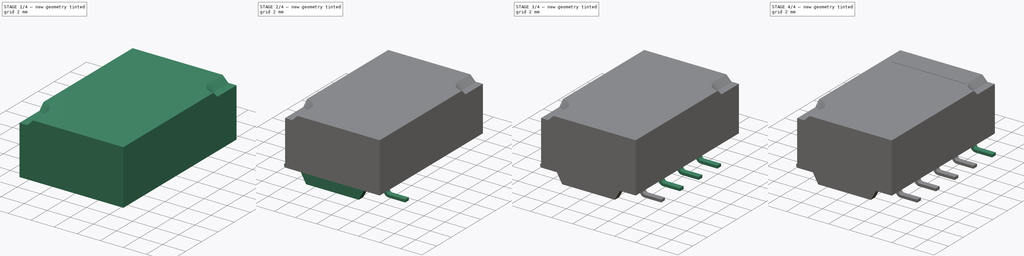
[diagram: build sequence overview — one tinted view per stage of 4, left to right]
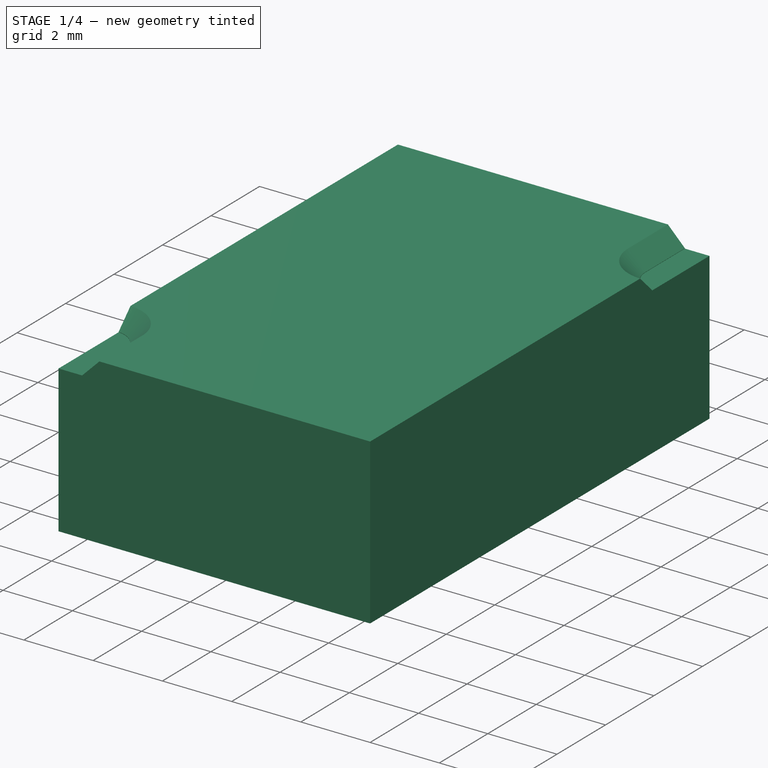
[diagram: stage 1 of 4 — iso view after this stage's code; geometry added in this stage tinted green]
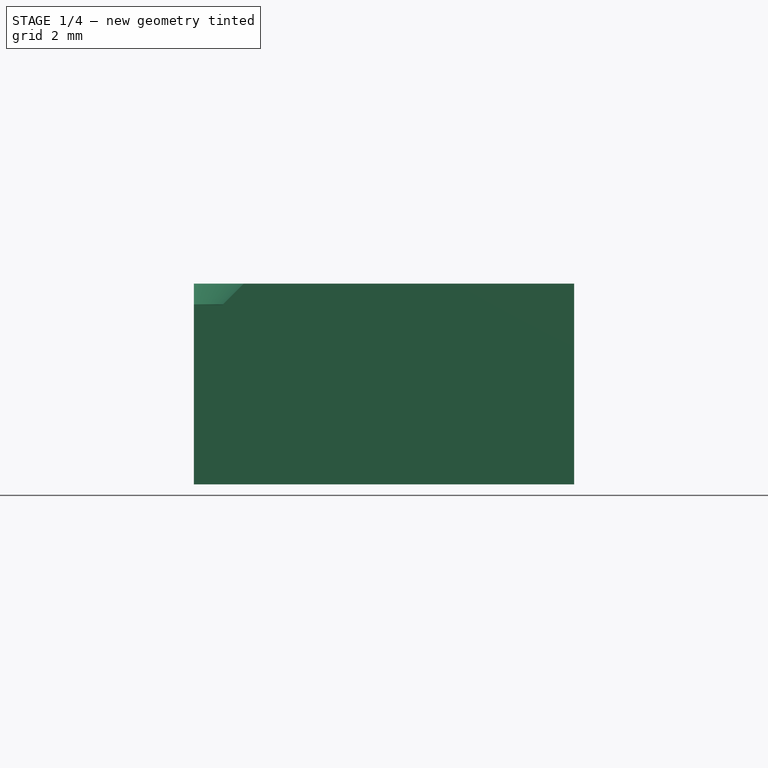
[diagram: stage 1 of 4 — front view after this stage's code; geometry added in this stage tinted green]
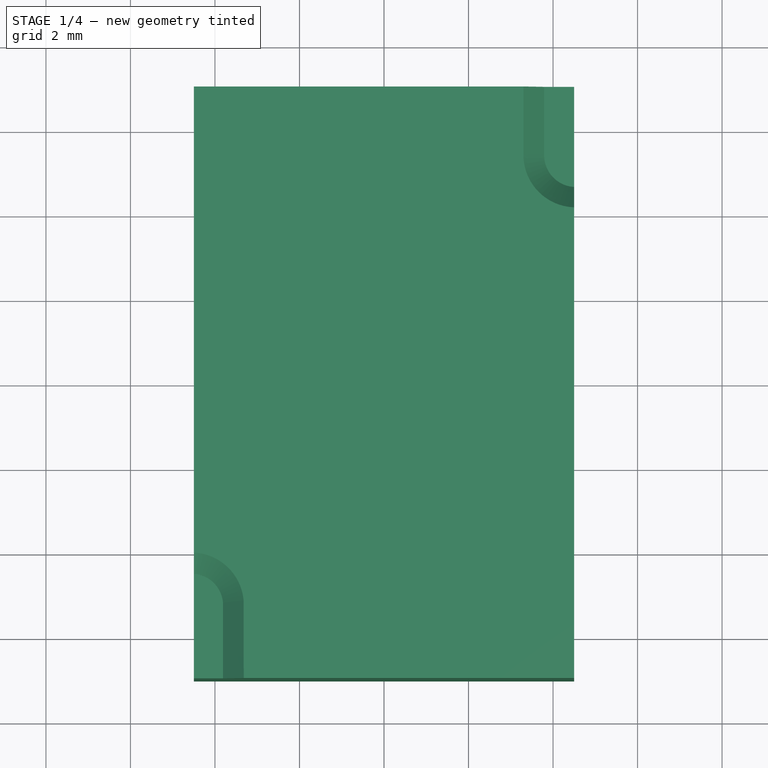
[diagram: stage 1 of 4 — top view after this stage's code; geometry added in this stage tinted green]
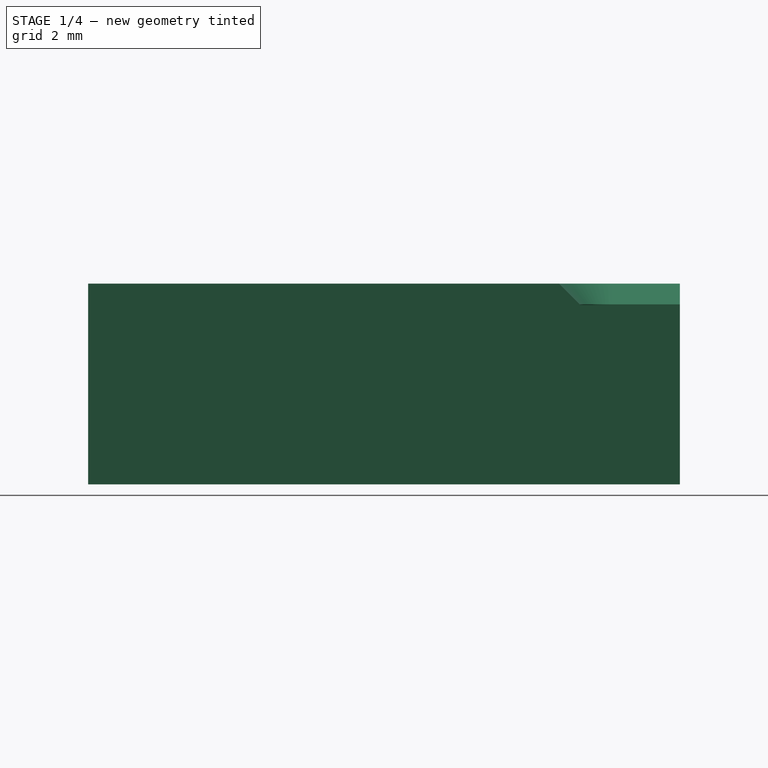
[diagram: stage 1 of 4 — right view after this stage's code; geometry added in this stage tinted green]
FCSTD DOCUMENT  (FreeCAD 0.16R6712 (Git))
Label: Relay_DPDT_FRT5_SMD
License: All rights reserved
LicenseURL: http://en.wikipedia.org/wiki/All_rights_reserved
objects: Sketcher::SketchObject×10, PartDesign::Pad×8, Part::Feature×3, PartDesign::Pocket×2, PartDesign::Chamfer×1, Part::MultiFuse×1, App::DocumentObjectGroup×1
note: 35 computed .brp shape members not serialized (recipe doc carries the construction recipe); baked Part::Feature solids carry a one-line shape summary decoded from their .brp

FEATURE [Sketcher::SketchObject] Sketch
  Placement = pos=(-3.81,5.08,0.9) rot=(0,0,-1;1.5708rad)
  expr: Constraints[10] = (14 - 4 * 2.54) / 2
  expr: Constraints[11] = (9 - 7.62) / 2
  sketch-geometry (4):
    g0: LineSegment StartX=-1.92 StartY=-0.69 StartZ=0 EndX=12.08 EndY=-0.69 EndZ=0
    g1: LineSegment StartX=12.08 StartY=-0.69 StartZ=0 EndX=12.08 EndY=8.31 EndZ=0
    g2: LineSegment StartX=12.08 StartY=8.31 StartZ=0 EndX=-1.92 EndY=8.31 EndZ=0
    g3: LineSegment StartX=-1.92 StartY=8.31 StartZ=0 EndX=-1.92 EndY=-0.69 EndZ=0
  constraints (12):
    c: Coincident(g0,g1)
    c: Coincident(g1,g2)
    c: Coincident(g2,g3)
    c: Coincident(g3,g0)
    c: Horizontal(g0)
    c: Horizontal(g2)
    c: Vertical(g1)
    c: Vertical(g3)
    c: DistanceX(g2,g2) = 14
    c: DistanceY(g1,g1) = 9
    c: DistanceX(g0,g-1) = 1.92
    c: DistanceY(g0,g-1) = 0.69
FEATURE [PartDesign::Pad] Pad
  Length = 4.75
  Length2 = 100
  Placement = pos=(-3.81,5.08,0.9) rot=(0,0,-1;1.5708rad)
  Sketch = -> Sketch
  Type = 0
FEATURE [Sketcher::SketchObject] Sketch003
  Placement = pos=(-3.81,5.08,5.65) rot=(0,0,-1;1.5708rad)
  Support = -> Pad [Face6]
  sketch-geometry (8):
    g0: ArcOfCircle CenterX=-0.300217 CenterY=8.35 CenterZ=0 NormalX=0 NormalY=0 NormalZ=1 Radius=0.750217 StartAngle=4.68833 EndAngle=6.28319
    g1: LineSegment StartX=0.45 StartY=8.35 StartZ=0 EndX=-2.05 EndY=8.35 EndZ=0
    g2: LineSegment StartX=-2.05 StartY=8.35 StartZ=0 EndX=-2.05 EndY=7.6 EndZ=0
    g3: LineSegment StartX=-2.05 StartY=7.6 StartZ=0 EndX=-0.318267 EndY=7.6 EndZ=0
    g4: LineSegment StartX=9.6 StartY=-0.75 StartZ=0 EndX=12.1 EndY=-0.75 EndZ=0
    g5: LineSegment StartX=12.1 StartY=-0.75 StartZ=0 EndX=12.1 EndY=0 EndZ=0
    g6: ArcOfCircle CenterX=10.353 CenterY=-0.75 CenterZ=0 NormalX=0 NormalY=0 NormalZ=1 Radius=0.753 StartAngle=1.6601 EndAngle=3.14159
    g7: LineSegment StartX=10.2858 StartY=0 StartZ=0 EndX=12.1 EndY=0 EndZ=0
  constraints (24):
    c: Coincident(g1,g0)
    c: Horizontal(g1)
    c: Coincident(g2,g1)
    c: Vertical(g2)
    c: Coincident(g3,g2)
    c: Coincident(g3,g0)
    c: Horizontal(g3)
    c: PointOnObject(g0,g1)
    c: DistanceX(g1,g1) = 2.5
    c: DistanceY(g2,g2) = 0.75
    c: DistanceX(g-1,g0) = 0.45
    c: DistanceY(g-1,g0) = 8.35
    c: Horizontal(g4)
    c: Coincident(g5,g4)
    c: PointOnObject(g6,g4)
    c: Coincident(g6,g4)
    c: Coincident(g6,g7)
    c: Horizontal(g7)
    c: Coincident(g5,g7)
    c: Vertical(g5)
    c: Equal(g5,g2)
    c: Equal(g4,g1)
    c: DistanceX(g-1,g4) = 9.6
    c: DistanceY(g4,g-1) = 0.75
FEATURE [PartDesign::Pocket] Pocket
  Length = 0.5
  Placement = pos=(-3.81,5.08,0.9) rot=(0,0,-1;1.5708rad)
  Sketch = -> Sketch003
  Type = 0
FEATURE [PartDesign::Chamfer] Chamfer
  Base = -> Pocket [Edge18,Edge16,Edge20,Edge21]
  Placement = pos=(-3.81,5.08,0.9) rot=(0,0,-1;1.5708rad)
  Size = 0.49
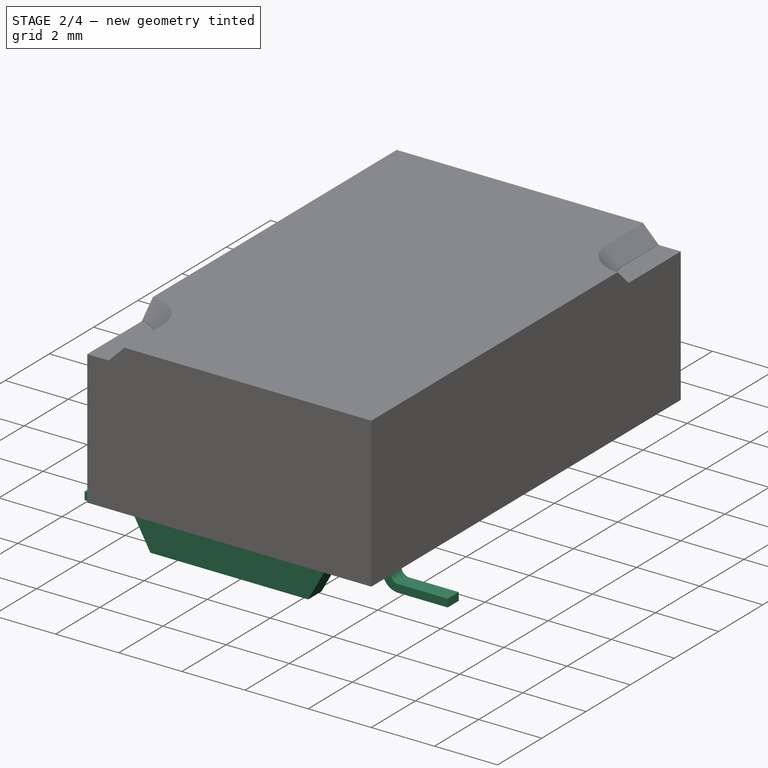
[diagram: stage 2 of 4 — iso view after this stage's code; geometry added in this stage tinted green]
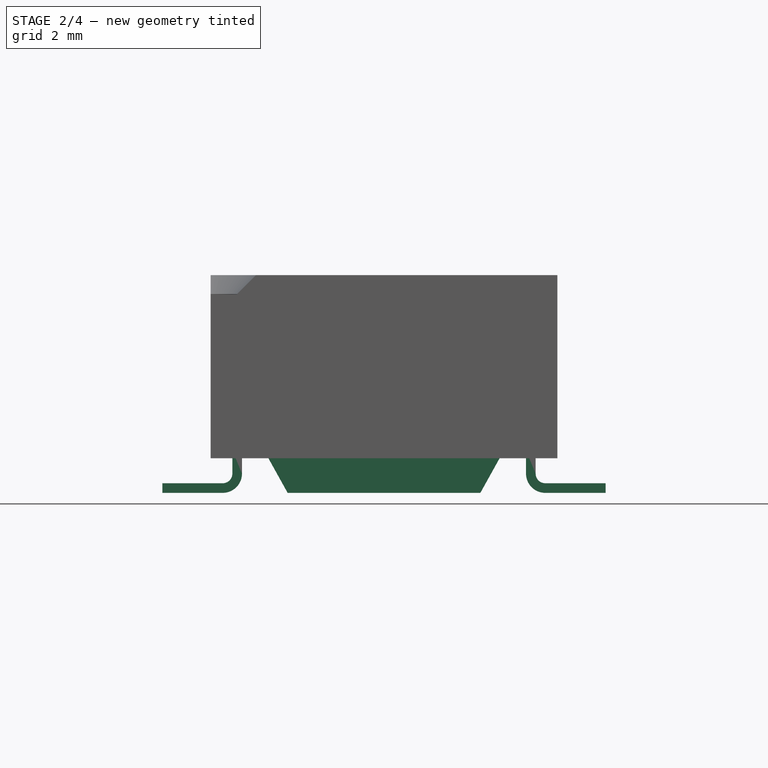
[diagram: stage 2 of 4 — front view after this stage's code; geometry added in this stage tinted green]
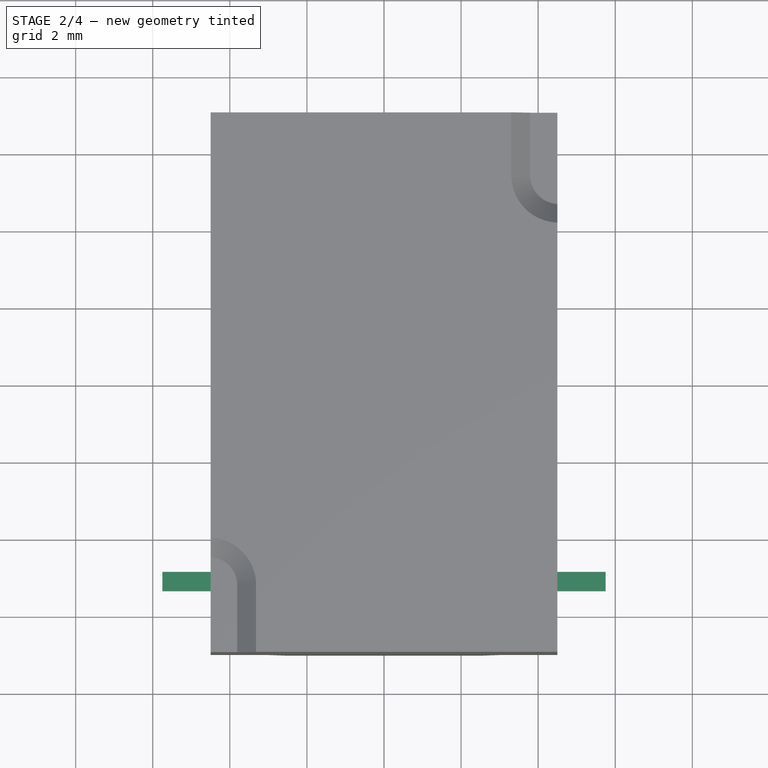
[diagram: stage 2 of 4 — top view after this stage's code; geometry added in this stage tinted green]
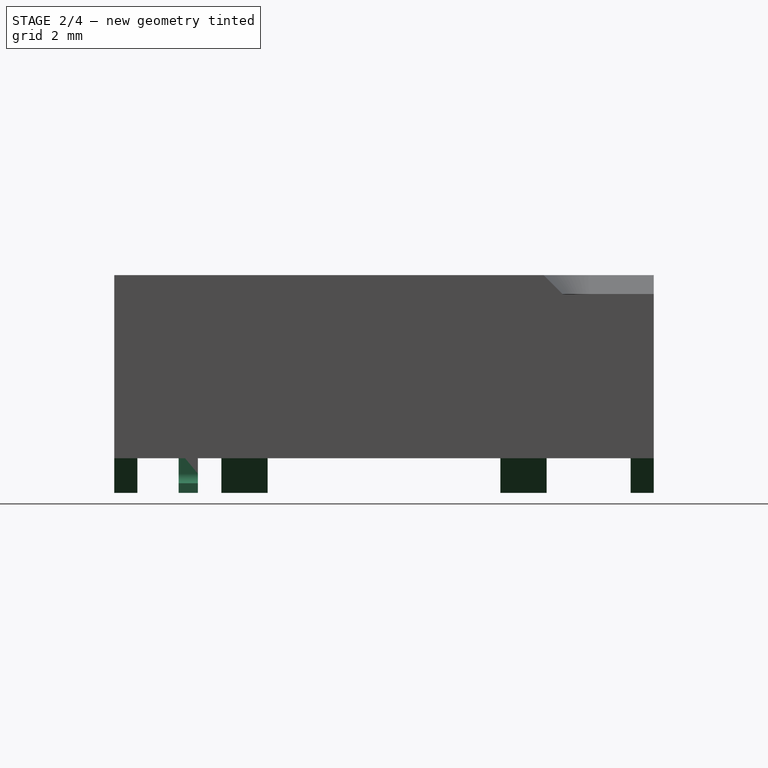
[diagram: stage 2 of 4 — right view after this stage's code; geometry added in this stage tinted green]
FEATURE [Sketcher::SketchObject] Sketch008
  Placement = pos=(-3.81,-5.08,0) rot=(1,0,0;1.5708rad)
  expr: Placement.Base.y = -2 * 2.54
  expr: Constraints[26] = 6.2 - 5.1
  sketch-geometry (20):
    g0: LineSegment StartX=-1.94 StartY=0 StartZ=0 EndX=-0.375 EndY=0 EndZ=0
    g1: LineSegment StartX=-0.375 StartY=0.25 StartZ=0 EndX=-1.94 EndY=0.25 EndZ=0
    g2: LineSegment StartX=-1.94 StartY=0.25 StartZ=0 EndX=-1.94 EndY=0 EndZ=0
    g3: LineSegment StartX=-0.125 StartY=1.1 StartZ=0 EndX=0.125 EndY=1.1 EndZ=0
    g4: LineSegment StartX=0.125 StartY=1.1 StartZ=0 EndX=0.125 EndY=0.5 EndZ=0
    g5: LineSegment StartX=-0.125 StartY=0.5 StartZ=0 EndX=-0.125 EndY=1.1 EndZ=0
    g6: GeomPoint [constr] X=0 Y=1.1 Z=0
    g7: ArcOfCircle CenterX=-0.375 CenterY=0.5 CenterZ=0 NormalX=0 NormalY=0 NormalZ=1 Radius=0.25 StartAngle=4.71239 EndAngle=6.28319
    g8: LineSegment [constr] StartX=-0.375 StartY=0.25 StartZ=0 EndX=-0.375 EndY=0.5 EndZ=0
    g9: ArcOfCircle CenterX=-0.375 CenterY=0.5 CenterZ=0 NormalX=0 NormalY=0 NormalZ=1 Radius=0.5 StartAngle=4.71239 EndAngle=6.28319
    g10: LineSegment StartX=7.99961 StartY=0 StartZ=0 EndX=9.56 EndY=0 EndZ=0
    g11: LineSegment StartX=9.56 StartY=0 StartZ=0 EndX=9.56 EndY=0.25 EndZ=0
    g12: LineSegment StartX=9.56 StartY=0.25 StartZ=0 EndX=7.995 EndY=0.25 EndZ=0
    g13: LineSegment StartX=7.495 StartY=1.1 StartZ=0 EndX=7.745 EndY=1.1 EndZ=0
    g14: LineSegment StartX=7.745 StartY=1.1 StartZ=0 EndX=7.745 EndY=0.5 EndZ=0
    g15: LineSegment StartX=7.495 StartY=0.495385 StartZ=0 EndX=7.495 EndY=1.1 EndZ=0
    g16: LineSegment [constr] StartX=7.995 StartY=0.25 StartZ=0 EndX=7.995 EndY=0.5 EndZ=0
    g17: ArcOfCircle CenterX=7.995 CenterY=0.5 CenterZ=0 NormalX=0 NormalY=0 NormalZ=1 Radius=0.25 StartAngle=3.14159 EndAngle=4.71239
    g18: ArcOfCircle CenterX=7.995 CenterY=0.5 CenterZ=0 NormalX=0 NormalY=0 NormalZ=1 Radius=0.500021 StartAngle=3.15082 EndAngle=4.72162
    g19: LineSegment [constr] StartX=7.745 StartY=0.5 StartZ=0 EndX=7.995 EndY=0.5 EndZ=0
  constraints (56):
    c: Coincident(g1,g2)
    c: Coincident(g2,g0)
    c: Horizontal(g0)
    c: Horizontal(g1)
    c: Vertical(g2)
    c: PointOnObject(g0,g-1)
    c: Coincident(g3,g4)
    c: Coincident(g5,g3)
    c: Horizontal(g3)
    c: Vertical(g4)
    c: Vertical(g5)
    c: PointOnObject(g6,g3)
    c: PointOnObject(g6,g-2)
    c: Symmetric(g3,g3,g6)
    c: DistanceX(g3,g3) = 0.25
    c: Equal(g2,g3)
    c: Coincident(g7,g1)
    c: Coincident(g7,g5)
    c: Coincident(g8,g1)
    c: Coincident(g8,g7)
    c: Vertical(g8)
    c: Radius(g7) = 0.25
    c: Coincident(g9,g7)
    c: Coincident(g9,g4)
    c: Coincident(g9,g0)
    c: Equal(g4,g5)
    c: DistanceY(g-1,g3) = 1.1
    c: Coincident(g10,g11)
    c: Coincident(g11,g12)
    c: Horizontal(g10)
    c: Horizontal(g12)
    c: Vertical(g11)
    c: PointOnObject(g10,g-1)
    c: Equal(g2,g11)
    c: Coincident(g13,g14)
    c: Coincident(g15,g13)
    c: Horizontal(g13)
    c: Vertical(g14)
    c: Vertical(g15)
    c: Equal(g13,g11)
    c: Coincident(g16,g12)
    c: Vertical(g16)
    c: Coincident(g17,g16)
    c: Coincident(g17,g12)
    c: Coincident(g17,g14)
    c: Coincident(g18,g16)
    c: Coincident(g18,g10)
    c: Coincident(g18,g15)
    c: Equal(g17,g7)
    c: DistanceX(g3,g13) = 7.62
    c: DistanceX(g0,g10) = 11.5
    c: Equal(g12,g1)
    c: Coincident(g19,g14)
    c: Coincident(g19,g16)
    c: Horizontal(g19)
    c: DistanceY(g3,g13) = 0
FEATURE [PartDesign::Pad] Pad006
  Length = 0.5
  Length2 = 100
  Midplane = true
  Placement = pos=(-3.81,-5.08,0) rot=(1,0,0;1.5708rad)
  Sketch = -> Sketch008
  Type = 0
FEATURE [Sketcher::SketchObject] Sketch009
  ExternalGeometry = -> [Chamfer]
  Placement = pos=(-3.81,-7,0.9) rot=(1,0,0;1.5708rad)
  Support = -> Chamfer [Face6]
  sketch-geometry (6):
    g0: LineSegment StartX=0.81 StartY=0 StartZ=0 EndX=1.31 EndY=-0.9 EndZ=0
    g1: LineSegment StartX=1.31 StartY=-0.9 StartZ=0 EndX=6.31 EndY=-0.9 EndZ=0
    g2: LineSegment StartX=6.31 StartY=-0.9 StartZ=0 EndX=6.81 EndY=0 EndZ=0
    g3: LineSegment StartX=6.81 StartY=0 StartZ=0 EndX=0.81 EndY=0 EndZ=0
    g4: GeomPoint [constr] X=3.81 Y=0 Z=0
    g5: LineSegment [constr] StartX=3.81 StartY=0 StartZ=0 EndX=3.81 EndY=-0.9 EndZ=0
  constraints (15):
    c: Coincident(g1,g0)
    c: Horizontal(g1)
    c: Coincident(g2,g1)
    c: Coincident(g3,g2)
    c: Horizontal(g3)
    c: Coincident(g0,g3)
    c: Symmetric(g3,g3,g4)
    c: Symmetric(g-3,g-3,g4)
    c: Coincident(g5,g4)
    c: PointOnObject(g5,g1)
    c: Symmetric(g1,g1,g5)
    c: Vertical(g5)
    c: DistanceY(g0,g0) = 0.9
    c: DistanceX(g1,g1) = 5
    c: DistanceX(g0,g2) = 6
FEATURE [PartDesign::Pad] Pad007
  Length = 14
  Length2 = 100
  Placement = pos=(-3.81,5.08,0.9) rot=(0,0,-1;1.5708rad)
  Reversed = true
  Sketch = -> Sketch009
  Type = 0
FEATURE [Sketcher::SketchObject] Sketch010
  ExternalGeometry = -> [Pad007]
  Placement = pos=(-3.81,5.08,0) rot=(0.707107,-0.707107,0;3.14159rad)
  Support = -> Pad007 [Face1]
  expr: Constraints[29] = 1.5 + 0.6800000000000001
  expr: Constraints[28] = 1.5 + 0.6800000000000001
  sketch-geometry (12):
    g0: LineSegment StartX=-1.32 StartY=-0.81 StartZ=0 EndX=0.86 EndY=-0.81 EndZ=0
    g1: LineSegment StartX=0.86 StartY=-0.81 StartZ=0 EndX=0.86 EndY=-6.81 EndZ=0
    g2: LineSegment StartX=0.86 StartY=-6.81 StartZ=0 EndX=-1.32 EndY=-6.81 EndZ=0
    g3: LineSegment StartX=-1.32 StartY=-6.81 StartZ=0 EndX=-1.32 EndY=-0.81 EndZ=0
    g4: LineSegment StartX=2.06 StartY=-0.81 StartZ=0 EndX=8.1 EndY=-0.81 EndZ=0
    g5: LineSegment StartX=8.1 StartY=-0.81 StartZ=0 EndX=8.1 EndY=-6.81 EndZ=0
    g6: LineSegment StartX=8.1 StartY=-6.81 StartZ=0 EndX=2.06 EndY=-6.81 EndZ=0
    g7: LineSegment StartX=2.06 StartY=-6.81 StartZ=0 EndX=2.06 EndY=-0.81 EndZ=0
    g8: LineSegment StartX=9.3 StartY=-0.81 StartZ=0 EndX=11.48 EndY=-0.81 EndZ=0
    g9: LineSegment StartX=11.48 StartY=-0.81 StartZ=0 EndX=11.48 EndY=-6.81 EndZ=0
    g10: LineSegment StartX=11.48 StartY=-6.81 StartZ=0 EndX=9.3 EndY=-6.81 EndZ=0
    g11: LineSegment StartX=9.3 StartY=-6.81 StartZ=0 EndX=9.3 EndY=-0.81 EndZ=0
  constraints (36):
    c: Coincident(g0,g1)
    c: Coincident(g1,g2)
    c: Coincident(g2,g3)
    c: Coincident(g3,g0)
    c: Horizontal(g0)
    c: Horizontal(g2)
    c: Vertical(g1)
    c: Vertical(g3)
    c: Coincident(g4,g5)
    c: Coincident(g5,g6)
    c: Coincident(g6,g7)
    c: Coincident(g7,g4)
    c: Horizontal(g4)
    c: Horizontal(g6)
    c: Vertical(g5)
    c: Vertical(g7)
    c: Coincident(g8,g9)
    c: Coincident(g9,g10)
    c: Coincident(g10,g11)
    c: Coincident(g11,g8)
    c: Horizontal(g8)
    c: Horizontal(g10)
    c: Vertical(g9)
    c: Vertical(g11)
    c: DistanceX(g1,g6) = 1.2
    c: DistanceX(g5,g10) = 1.2
    c: DistanceX(g-3,g2) = 0.6
    c: DistanceX(g8,g-4) = 0.6
    c: DistanceX(g8,g8) = 2.18
    c: DistanceX(g0,g0) = 2.18
    c: PointOnObject(g6,g-7)
    c: PointOnObject(g1,g-7)
    c: PointOnObject(g10,g-7)
    c: PointOnObject(g0,g-6)
    c: PointOnObject(g4,g-6)
    c: PointOnObject(g8,g-6)
FEATURE [PartDesign::Pocket] Pocket001
  Length = 0.9
  Placement = pos=(-3.81,5.08,0.9) rot=(0,0,-1;1.5708rad)
  Sketch = -> Sketch010
  Type = 0
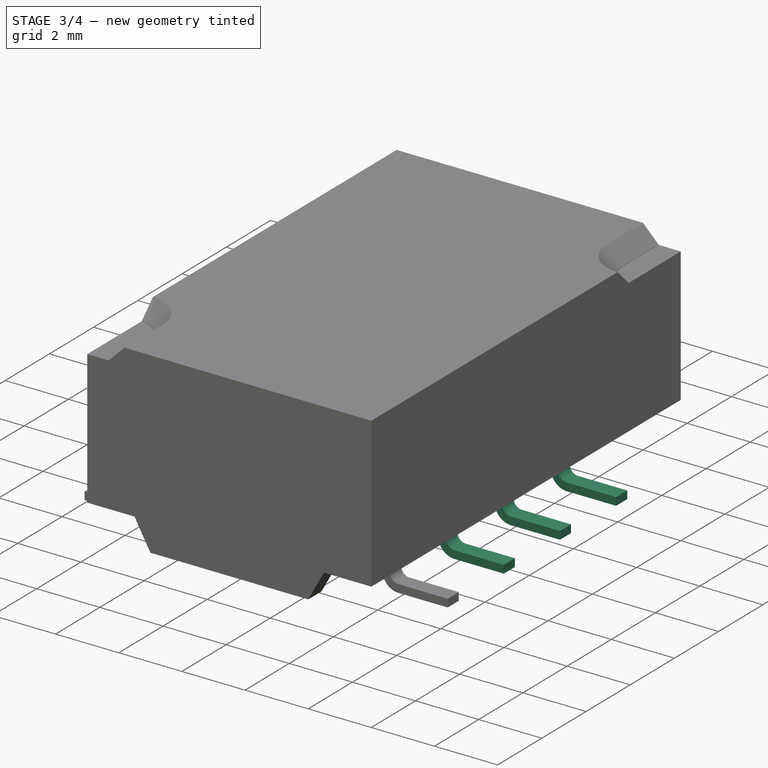
[diagram: stage 3 of 4 — iso view after this stage's code; geometry added in this stage tinted green]
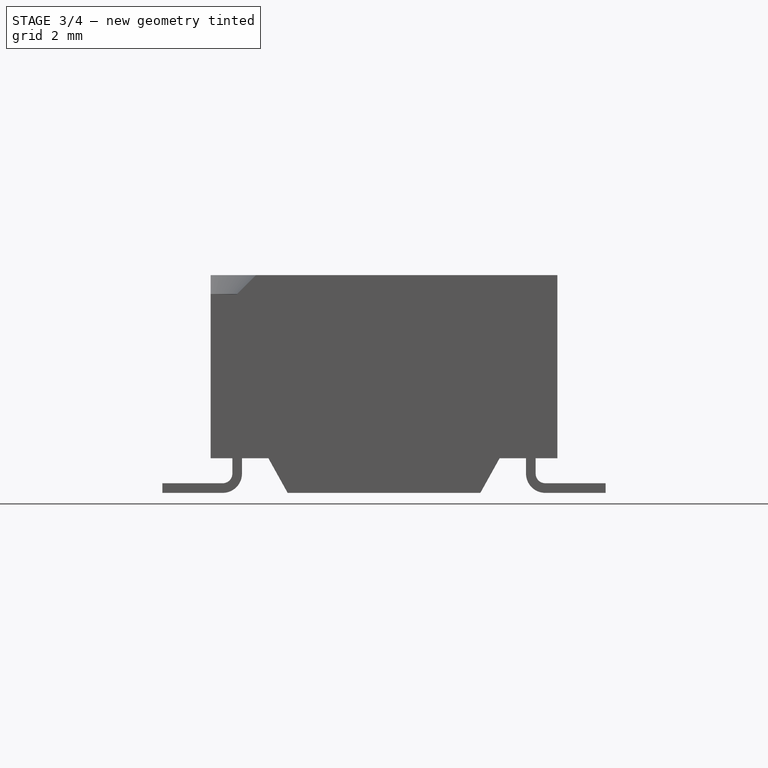
[diagram: stage 3 of 4 — front view after this stage's code; geometry added in this stage tinted green]
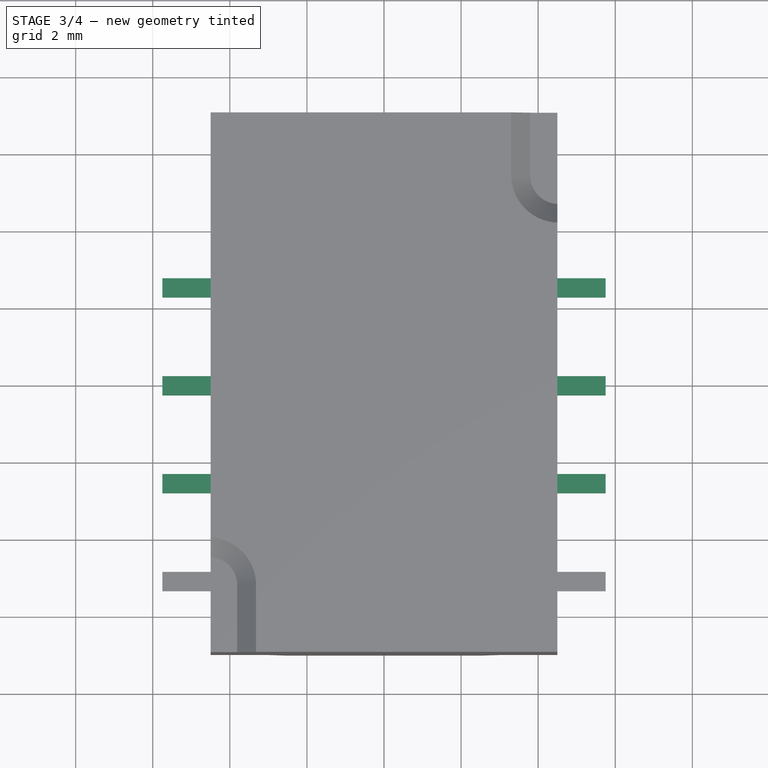
[diagram: stage 3 of 4 — top view after this stage's code; geometry added in this stage tinted green]
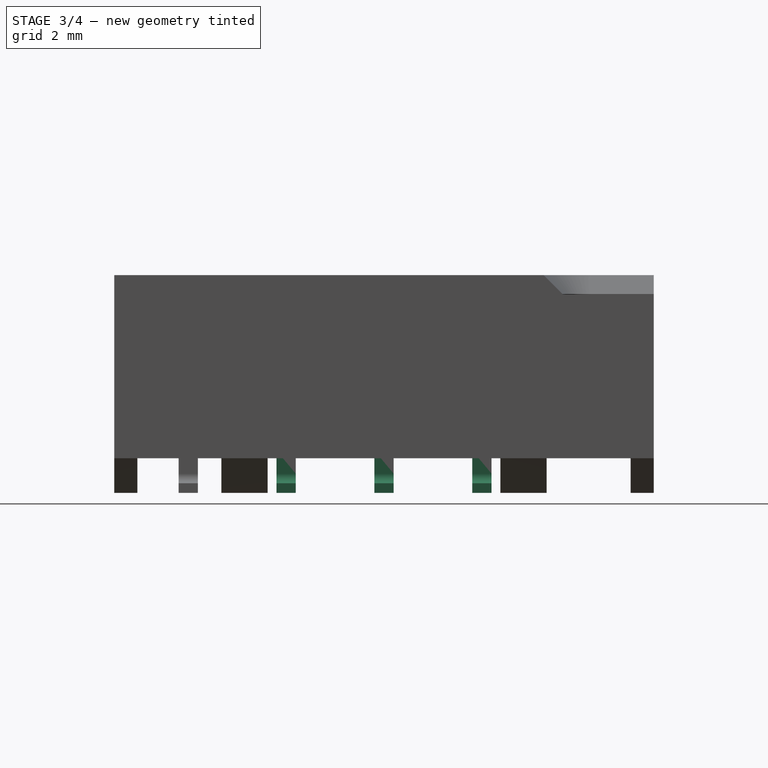
[diagram: stage 3 of 4 — right view after this stage's code; geometry added in this stage tinted green]
FEATURE [Sketcher::SketchObject] Sketch005
  Placement = pos=(-3.81,2.54,0) rot=(1,0,0;1.5708rad)
  expr: Constraints[26] = 6.2 - 5.1
  sketch-geometry (20):
    g0: LineSegment StartX=-1.94 StartY=0 StartZ=0 EndX=-0.375 EndY=0 EndZ=0
    g1: LineSegment StartX=-0.375 StartY=0.25 StartZ=0 EndX=-1.94 EndY=0.25 EndZ=0
    g2: LineSegment StartX=-1.94 StartY=0.25 StartZ=0 EndX=-1.94 EndY=0 EndZ=0
    g3: LineSegment StartX=-0.125 StartY=1.1 StartZ=0 EndX=0.125 EndY=1.1 EndZ=0
    g4: LineSegment StartX=0.125 StartY=1.1 StartZ=0 EndX=0.125 EndY=0.5 EndZ=0
    g5: LineSegment StartX=-0.125 StartY=0.5 StartZ=0 EndX=-0.125 EndY=1.1 EndZ=0
    g6: GeomPoint [constr] X=0 Y=1.1 Z=0
    g7: ArcOfCircle CenterX=-0.375 CenterY=0.5 CenterZ=0 NormalX=0 NormalY=0 NormalZ=1 Radius=0.25 StartAngle=4.71239 EndAngle=6.28319
    g8: LineSegment [constr] StartX=-0.375 StartY=0.25 StartZ=0 EndX=-0.375 EndY=0.5 EndZ=0
    g9: ArcOfCircle CenterX=-0.375 CenterY=0.5 CenterZ=0 NormalX=0 NormalY=0 NormalZ=1 Radius=0.5 StartAngle=4.71239 EndAngle=6.28319
    g10: LineSegment StartX=7.99961 StartY=0 StartZ=0 EndX=9.56 EndY=0 EndZ=0
    g11: LineSegment StartX=9.56 StartY=0 StartZ=0 EndX=9.56 EndY=0.25 EndZ=0
    g12: LineSegment StartX=9.56 StartY=0.25 StartZ=0 EndX=7.995 EndY=0.25 EndZ=0
    g13: LineSegment StartX=7.495 StartY=1.1 StartZ=0 EndX=7.745 EndY=1.1 EndZ=0
    g14: LineSegment StartX=7.745 StartY=1.1 StartZ=0 EndX=7.745 EndY=0.5 EndZ=0
    g15: LineSegment StartX=7.495 StartY=0.495385 StartZ=0 EndX=7.495 EndY=1.1 EndZ=0
    g16: LineSegment [constr] StartX=7.995 StartY=0.25 StartZ=0 EndX=7.995 EndY=0.5 EndZ=0
    g17: ArcOfCircle CenterX=7.995 CenterY=0.5 CenterZ=0 NormalX=0 NormalY=0 NormalZ=1 Radius=0.25 StartAngle=3.14159 EndAngle=4.71239
    g18: ArcOfCircle CenterX=7.995 CenterY=0.5 CenterZ=0 NormalX=0 NormalY=0 NormalZ=1 Radius=0.500021 StartAngle=3.15082 EndAngle=4.72162
    g19: LineSegment [constr] StartX=7.745 StartY=0.5 StartZ=0 EndX=7.995 EndY=0.5 EndZ=0
  constraints (56):
    c: Coincident(g1,g2)
    c: Coincident(g2,g0)
    c: Horizontal(g0)
    c: Horizontal(g1)
    c: Vertical(g2)
    c: PointOnObject(g0,g-1)
    c: Coincident(g3,g4)
    c: Coincident(g5,g3)
    c: Horizontal(g3)
    c: Vertical(g4)
    c: Vertical(g5)
    c: PointOnObject(g6,g3)
    c: PointOnObject(g6,g-2)
    c: Symmetric(g3,g3,g6)
    c: DistanceX(g3,g3) = 0.25
    c: Equal(g2,g3)
    c: Coincident(g7,g1)
    c: Coincident(g7,g5)
    c: Coincident(g8,g1)
    c: Coincident(g8,g7)
    c: Vertical(g8)
    c: Radius(g7) = 0.25
    c: Coincident(g9,g7)
    c: Coincident(g9,g4)
    c: Coincident(g9,g0)
    c: Equal(g4,g5)
    c: DistanceY(g-1,g3) = 1.1
    c: Coincident(g10,g11)
    c: Coincident(g11,g12)
    c: Horizontal(g10)
    c: Horizontal(g12)
    c: Vertical(g11)
    c: PointOnObject(g10,g-1)
    c: Equal(g2,g11)
    c: Coincident(g13,g14)
    c: Coincident(g15,g13)
    c: Horizontal(g13)
    c: Vertical(g14)
    c: Vertical(g15)
    c: Equal(g13,g11)
    c: Coincident(g16,g12)
    c: Vertical(g16)
    c: Coincident(g17,g16)
    c: Coincident(g17,g12)
    c: Coincident(g17,g14)
    c: Coincident(g18,g16)
    c: Coincident(g18,g10)
    c: Coincident(g18,g15)
    c: Equal(g17,g7)
    c: DistanceX(g3,g13) = 7.62
    c: DistanceX(g0,g10) = 11.5
    c: Equal(g12,g1)
    c: Coincident(g19,g14)
    c: Coincident(g19,g16)
    c: Horizontal(g19)
    c: DistanceY(g3,g13) = 0
FEATURE [PartDesign::Pad] Pad003
  Length = 0.5
  Length2 = 100
  Midplane = true
  Placement = pos=(-3.81,2.54,0) rot=(1,0,0;1.5708rad)
  Sketch = -> Sketch005
  Type = 0
FEATURE [Sketcher::SketchObject] Sketch006
  Placement = pos=(-3.81,0,0) rot=(1,0,0;1.5708rad)
  expr: Constraints[26] = 6.2 - 5.1
  sketch-geometry (20):
    g0: LineSegment StartX=-1.94 StartY=0 StartZ=0 EndX=-0.375 EndY=0 EndZ=0
    g1: LineSegment StartX=-0.375 StartY=0.25 StartZ=0 EndX=-1.94 EndY=0.25 EndZ=0
    g2: LineSegment StartX=-1.94 StartY=0.25 StartZ=0 EndX=-1.94 EndY=0 EndZ=0
    g3: LineSegment StartX=-0.125 StartY=1.1 StartZ=0 EndX=0.125 EndY=1.1 EndZ=0
    g4: LineSegment StartX=0.125 StartY=1.1 StartZ=0 EndX=0.125 EndY=0.5 EndZ=0
    g5: LineSegment StartX=-0.125 StartY=0.5 StartZ=0 EndX=-0.125 EndY=1.1 EndZ=0
    g6: GeomPoint [constr] X=0 Y=1.1 Z=0
    g7: ArcOfCircle CenterX=-0.375 CenterY=0.5 CenterZ=0 NormalX=0 NormalY=0 NormalZ=1 Radius=0.25 StartAngle=4.71239 EndAngle=6.28319
    g8: LineSegment [constr] StartX=-0.375 StartY=0.25 StartZ=0 EndX=-0.375 EndY=0.5 EndZ=0
    g9: ArcOfCircle CenterX=-0.375 CenterY=0.5 CenterZ=0 NormalX=0 NormalY=0 NormalZ=1 Radius=0.5 StartAngle=4.71239 EndAngle=6.28319
    g10: LineSegment StartX=7.99961 StartY=0 StartZ=0 EndX=9.56 EndY=0 EndZ=0
    g11: LineSegment StartX=9.56 StartY=0 StartZ=0 EndX=9.56 EndY=0.25 EndZ=0
    g12: LineSegment StartX=9.56 StartY=0.25 StartZ=0 EndX=7.995 EndY=0.25 EndZ=0
    g13: LineSegment StartX=7.495 StartY=1.1 StartZ=0 EndX=7.745 EndY=1.1 EndZ=0
    g14: LineSegment StartX=7.745 StartY=1.1 StartZ=0 EndX=7.745 EndY=0.5 EndZ=0
    g15: LineSegment StartX=7.495 StartY=0.495385 StartZ=0 EndX=7.495 EndY=1.1 EndZ=0
    g16: LineSegment [constr] StartX=7.995 StartY=0.25 StartZ=0 EndX=7.995 EndY=0.5 EndZ=0
    g17: ArcOfCircle CenterX=7.995 CenterY=0.5 CenterZ=0 NormalX=0 NormalY=0 NormalZ=1 Radius=0.25 StartAngle=3.14159 EndAngle=4.71239
    g18: ArcOfCircle CenterX=7.995 CenterY=0.5 CenterZ=0 NormalX=0 NormalY=0 NormalZ=1 Radius=0.500021 StartAngle=3.15082 EndAngle=4.72162
    g19: LineSegment [constr] StartX=7.745 StartY=0.5 StartZ=0 EndX=7.995 EndY=0.5 EndZ=0
  constraints (56):
    c: Coincident(g1,g2)
    c: Coincident(g2,g0)
    c: Horizontal(g0)
    c: Horizontal(g1)
    c: Vertical(g2)
    c: PointOnObject(g0,g-1)
    c: Coincident(g3,g4)
    c: Coincident(g5,g3)
    c: Horizontal(g3)
    c: Vertical(g4)
    c: Vertical(g5)
    c: PointOnObject(g6,g3)
    c: PointOnObject(g6,g-2)
    c: Symmetric(g3,g3,g6)
    c: DistanceX(g3,g3) = 0.25
    c: Equal(g2,g3)
    c: Coincident(g7,g1)
    c: Coincident(g7,g5)
    c: Coincident(g8,g1)
    c: Coincident(g8,g7)
    c: Vertical(g8)
    c: Radius(g7) = 0.25
    c: Coincident(g9,g7)
    c: Coincident(g9,g4)
    c: Coincident(g9,g0)
    c: Equal(g4,g5)
    c: DistanceY(g-1,g3) = 1.1
    c: Coincident(g10,g11)
    c: Coincident(g11,g12)
    c: Horizontal(g10)
    c: Horizontal(g12)
    c: Vertical(g11)
    c: PointOnObject(g10,g-1)
    c: Equal(g2,g11)
    c: Coincident(g13,g14)
    c: Coincident(g15,g13)
    c: Horizontal(g13)
    c: Vertical(g14)
    c: Vertical(g15)
    c: Equal(g13,g11)
    c: Coincident(g16,g12)
    c: Vertical(g16)
    c: Coincident(g17,g16)
    c: Coincident(g17,g12)
    c: Coincident(g17,g14)
    c: Coincident(g18,g16)
    c: Coincident(g18,g10)
    c: Coincident(g18,g15)
    c: Equal(g17,g7)
    c: DistanceX(g3,g13) = 7.62
    c: DistanceX(g0,g10) = 11.5
    c: Equal(g12,g1)
    c: Coincident(g19,g14)
    c: Coincident(g19,g16)
    c: Horizontal(g19)
    c: DistanceY(g3,g13) = 0
FEATURE [PartDesign::Pad] Pad004
  Length = 0.5
  Length2 = 100
  Midplane = true
  Placement = pos=(-3.81,0,0) rot=(1,0,0;1.5708rad)
  Sketch = -> Sketch006
  Type = 0
FEATURE [Sketcher::SketchObject] Sketch007
  Placement = pos=(-3.81,-2.54,0) rot=(1,0,0;1.5708rad)
  expr: Constraints[26] = 6.2 - 5.1
  sketch-geometry (20):
    g0: LineSegment StartX=-1.94 StartY=0 StartZ=0 EndX=-0.375 EndY=0 EndZ=0
    g1: LineSegment StartX=-0.375 StartY=0.25 StartZ=0 EndX=-1.94 EndY=0.25 EndZ=0
    g2: LineSegment StartX=-1.94 StartY=0.25 StartZ=0 EndX=-1.94 EndY=0 EndZ=0
    g3: LineSegment StartX=-0.125 StartY=1.1 StartZ=0 EndX=0.125 EndY=1.1 EndZ=0
    g4: LineSegment StartX=0.125 StartY=1.1 StartZ=0 EndX=0.125 EndY=0.5 EndZ=0
    g5: LineSegment StartX=-0.125 StartY=0.5 StartZ=0 EndX=-0.125 EndY=1.1 EndZ=0
    g6: GeomPoint [constr] X=0 Y=1.1 Z=0
    g7: ArcOfCircle CenterX=-0.375 CenterY=0.5 CenterZ=0 NormalX=0 NormalY=0 NormalZ=1 Radius=0.25 StartAngle=4.71239 EndAngle=6.28319
    g8: LineSegment [constr] StartX=-0.375 StartY=0.25 StartZ=0 EndX=-0.375 EndY=0.5 EndZ=0
    g9: ArcOfCircle CenterX=-0.375 CenterY=0.5 CenterZ=0 NormalX=0 NormalY=0 NormalZ=1 Radius=0.5 StartAngle=4.71239 EndAngle=6.28319
    g10: LineSegment StartX=7.99961 StartY=0 StartZ=0 EndX=9.56 EndY=0 EndZ=0
    g11: LineSegment StartX=9.56 StartY=0 StartZ=0 EndX=9.56 EndY=0.25 EndZ=0
    g12: LineSegment StartX=9.56 StartY=0.25 StartZ=0 EndX=7.995 EndY=0.25 EndZ=0
    g13: LineSegment StartX=7.495 StartY=1.1 StartZ=0 EndX=7.745 EndY=1.1 EndZ=0
    g14: LineSegment StartX=7.745 StartY=1.1 StartZ=0 EndX=7.745 EndY=0.5 EndZ=0
    g15: LineSegment StartX=7.495 StartY=0.495385 StartZ=0 EndX=7.495 EndY=1.1 EndZ=0
    g16: LineSegment [constr] StartX=7.995 StartY=0.25 StartZ=0 EndX=7.995 EndY=0.5 EndZ=0
    g17: ArcOfCircle CenterX=7.995 CenterY=0.5 CenterZ=0 NormalX=0 NormalY=0 NormalZ=1 Radius=0.25 StartAngle=3.14159 EndAngle=4.71239
    g18: ArcOfCircle CenterX=7.995 CenterY=0.5 CenterZ=0 NormalX=0 NormalY=0 NormalZ=1 Radius=0.500021 StartAngle=3.15082 EndAngle=4.72162
    g19: LineSegment [constr] StartX=7.745 StartY=0.5 StartZ=0 EndX=7.995 EndY=0.5 EndZ=0
  constraints (56):
    c: Coincident(g1,g2)
    c: Coincident(g2,g0)
    c: Horizontal(g0)
    c: Horizontal(g1)
    c: Vertical(g2)
    c: PointOnObject(g0,g-1)
    c: Coincident(g3,g4)
    c: Coincident(g5,g3)
    c: Horizontal(g3)
    c: Vertical(g4)
    c: Vertical(g5)
    c: PointOnObject(g6,g3)
    c: PointOnObject(g6,g-2)
    c: Symmetric(g3,g3,g6)
    c: DistanceX(g3,g3) = 0.25
    c: Equal(g2,g3)
    c: Coincident(g7,g1)
    c: Coincident(g7,g5)
    c: Coincident(g8,g1)
    c: Coincident(g8,g7)
    c: Vertical(g8)
    c: Radius(g7) = 0.25
    c: Coincident(g9,g7)
    c: Coincident(g9,g4)
    c: Coincident(g9,g0)
    c: Equal(g4,g5)
    c: DistanceY(g-1,g3) = 1.1
    c: Coincident(g10,g11)
    c: Coincident(g11,g12)
    c: Horizontal(g10)
    c: Horizontal(g12)
    c: Vertical(g11)
    c: PointOnObject(g10,g-1)
    c: Equal(g2,g11)
    c: Coincident(g13,g14)
    c: Coincident(g15,g13)
    c: Horizontal(g13)
    c: Vertical(g14)
    c: Vertical(g15)
    c: Equal(g13,g11)
    c: Coincident(g16,g12)
    c: Vertical(g16)
    c: Coincident(g17,g16)
    c: Coincident(g17,g12)
    c: Coincident(g17,g14)
    c: Coincident(g18,g16)
    c: Coincident(g18,g10)
    c: Coincident(g18,g15)
    c: Equal(g17,g7)
    c: DistanceX(g3,g13) = 7.62
    c: DistanceX(g0,g10) = 11.5
    c: Equal(g12,g1)
    c: Coincident(g19,g14)
    c: Coincident(g19,g16)
    c: Horizontal(g19)
    c: DistanceY(g3,g13) = 0
FEATURE [PartDesign::Pad] Pad005
  Length = 0.5
  Length2 = 100
  Midplane = true
  Placement = pos=(-3.81,-2.54,0) rot=(1,0,0;1.5708rad)
  Sketch = -> Sketch007
  Type = 0
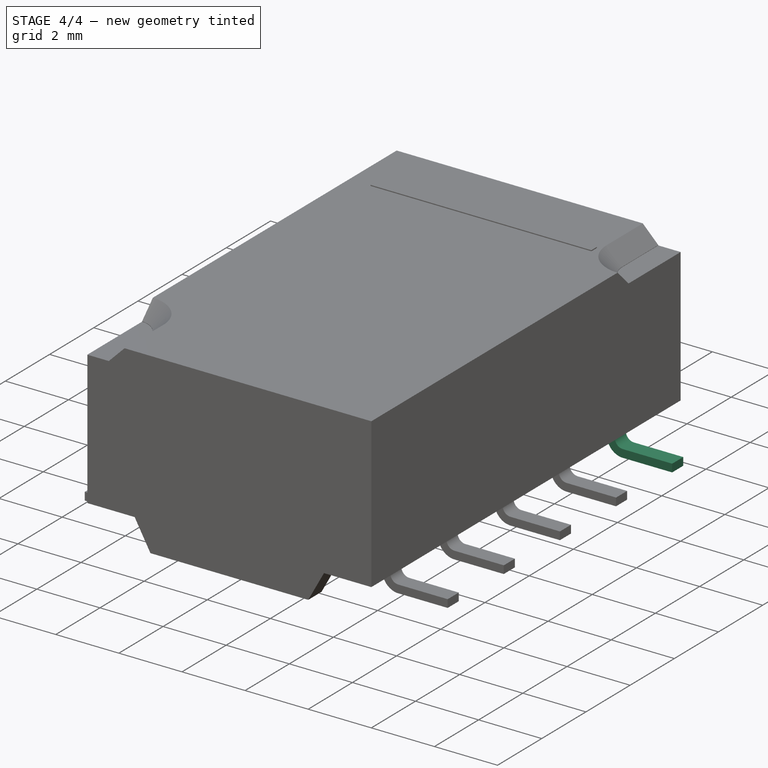
[diagram: stage 4 of 4 — iso view after this stage's code; geometry added in this stage tinted green]
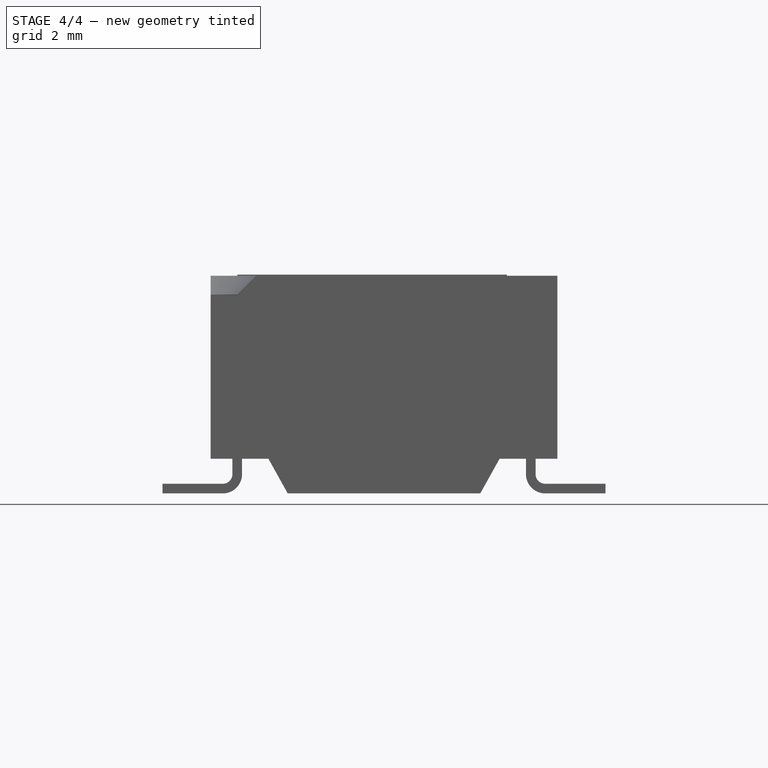
[diagram: stage 4 of 4 — front view after this stage's code; geometry added in this stage tinted green]
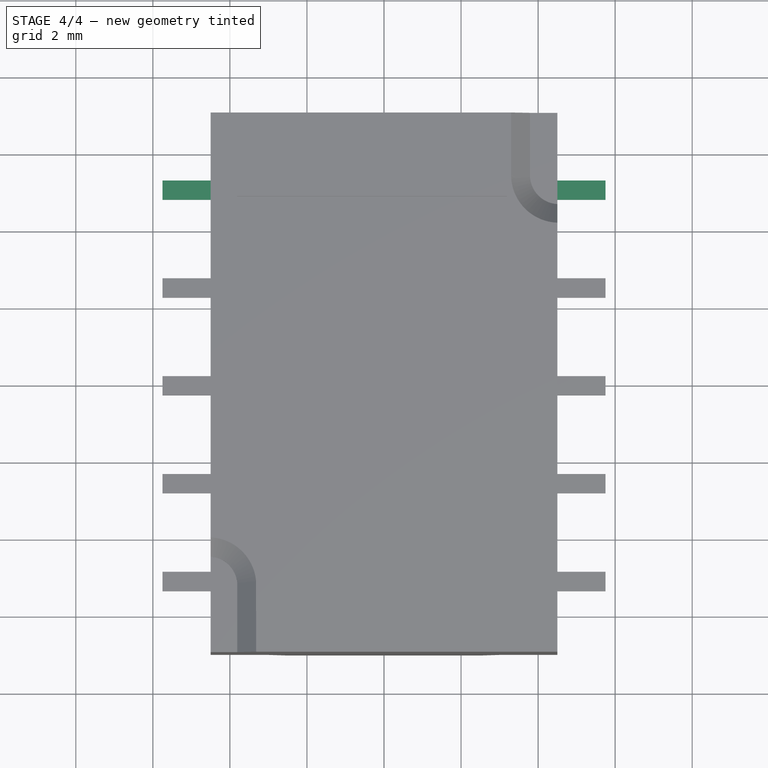
[diagram: stage 4 of 4 — top view after this stage's code; geometry added in this stage tinted green]
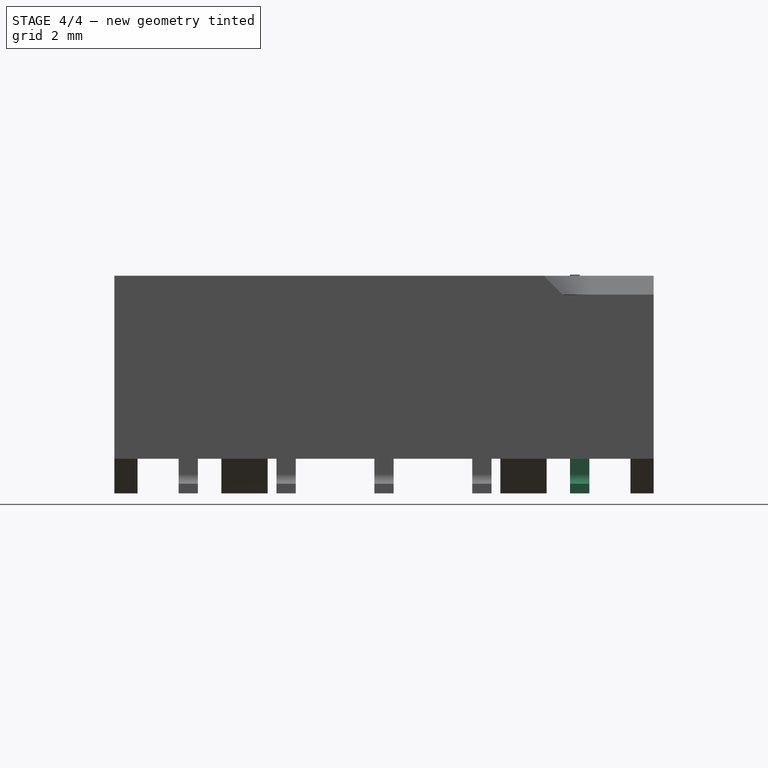
[diagram: stage 4 of 4 — right view after this stage's code; geometry added in this stage tinted green]
FEATURE [Sketcher::SketchObject] Sketch001
  Placement = pos=(-3.81,5.08,5.5) rot=(0,0,-1;1.5708rad)
  sketch-geometry (4):
    g0: LineSegment StartX=0 StartY=0 StartZ=0 EndX=0.25 EndY=0 EndZ=0
    g1: LineSegment StartX=0.25 StartY=0 StartZ=0 EndX=0.25 EndY=7 EndZ=0
    g2: LineSegment StartX=0.25 StartY=7 StartZ=0 EndX=0 EndY=7 EndZ=0
    g3: LineSegment StartX=0 StartY=7 StartZ=0 EndX=0 EndY=0 EndZ=0
  constraints (11):
    c: Coincident(g0,g1)
    c: Coincident(g1,g2)
    c: Coincident(g2,g3)
    c: Coincident(g3,g0)
    c: Horizontal(g0)
    c: Horizontal(g2)
    c: Vertical(g1)
    c: Vertical(g3)
    c: Coincident(g0,g-1)
    c: DistanceY(g1,g1) = 7
    c: DistanceX(g2,g2) = 0.25
FEATURE [PartDesign::Pad] Pad001
  Length = 0.18
  Length2 = 100
  Placement = pos=(-3.81,5.08,5.5) rot=(0,0,-1;1.5708rad)
  Sketch = -> Sketch001
  Type = 0
FEATURE [Sketcher::SketchObject] Sketch004
  Placement = pos=(-3.81,5.08,0) rot=(1,0,0;1.5708rad)
  expr: Constraints[26] = 6.2 - 5.1
  sketch-geometry (20):
    g0: LineSegment StartX=-1.94 StartY=0 StartZ=0 EndX=-0.375 EndY=0 EndZ=0
    g1: LineSegment StartX=-0.375 StartY=0.25 StartZ=0 EndX=-1.94 EndY=0.25 EndZ=0
    g2: LineSegment StartX=-1.94 StartY=0.25 StartZ=0 EndX=-1.94 EndY=0 EndZ=0
    g3: LineSegment StartX=-0.125 StartY=1.1 StartZ=0 EndX=0.125 EndY=1.1 EndZ=0
    g4: LineSegment StartX=0.125 StartY=1.1 StartZ=0 EndX=0.125 EndY=0.5 EndZ=0
    g5: LineSegment StartX=-0.125 StartY=0.5 StartZ=0 EndX=-0.125 EndY=1.1 EndZ=0
    g6: GeomPoint [constr] X=0 Y=1.1 Z=0
    g7: ArcOfCircle CenterX=-0.375 CenterY=0.5 CenterZ=0 NormalX=0 NormalY=0 NormalZ=1 Radius=0.25 StartAngle=4.71239 EndAngle=6.28319
    g8: LineSegment [constr] StartX=-0.375 StartY=0.25 StartZ=0 EndX=-0.375 EndY=0.5 EndZ=0
    g9: ArcOfCircle CenterX=-0.375 CenterY=0.5 CenterZ=0 NormalX=0 NormalY=0 NormalZ=1 Radius=0.5 StartAngle=4.71239 EndAngle=6.28319
    g10: LineSegment StartX=7.99961 StartY=0 StartZ=0 EndX=9.56 EndY=0 EndZ=0
    g11: LineSegment StartX=9.56 StartY=0 StartZ=0 EndX=9.56 EndY=0.25 EndZ=0
    g12: LineSegment StartX=9.56 StartY=0.25 StartZ=0 EndX=7.995 EndY=0.25 EndZ=0
    g13: LineSegment StartX=7.495 StartY=1.1 StartZ=0 EndX=7.745 EndY=1.1 EndZ=0
    g14: LineSegment StartX=7.745 StartY=1.1 StartZ=0 EndX=7.745 EndY=0.5 EndZ=0
    g15: LineSegment StartX=7.495 StartY=0.495385 StartZ=0 EndX=7.495 EndY=1.1 EndZ=0
    g16: LineSegment [constr] StartX=7.995 StartY=0.25 StartZ=0 EndX=7.995 EndY=0.5 EndZ=0
    g17: ArcOfCircle CenterX=7.995 CenterY=0.5 CenterZ=0 NormalX=0 NormalY=0 NormalZ=1 Radius=0.25 StartAngle=3.14159 EndAngle=4.71239
    g18: ArcOfCircle CenterX=7.995 CenterY=0.5 CenterZ=0 NormalX=0 NormalY=0 NormalZ=1 Radius=0.500021 StartAngle=3.15082 EndAngle=4.72162
    g19: LineSegment [constr] StartX=7.745 StartY=0.5 StartZ=0 EndX=7.995 EndY=0.5 EndZ=0
  constraints (56):
    c: Coincident(g1,g2)
    c: Coincident(g2,g0)
    c: Horizontal(g0)
    c: Horizontal(g1)
    c: Vertical(g2)
    c: PointOnObject(g0,g-1)
    c: Coincident(g3,g4)
    c: Coincident(g5,g3)
    c: Horizontal(g3)
    c: Vertical(g4)
    c: Vertical(g5)
    c: PointOnObject(g6,g3)
    c: PointOnObject(g6,g-2)
    c: Symmetric(g3,g3,g6)
    c: DistanceX(g3,g3) = 0.25
    c: Equal(g2,g3)
    c: Coincident(g7,g1)
    c: Coincident(g7,g5)
    c: Coincident(g8,g1)
    c: Coincident(g8,g7)
    c: Vertical(g8)
    c: Radius(g7) = 0.25
    c: Coincident(g9,g7)
    c: Coincident(g9,g4)
    c: Coincident(g9,g0)
    c: Equal(g4,g5)
    c: DistanceY(g-1,g3) = 1.1
    c: Coincident(g10,g11)
    c: Coincident(g11,g12)
    c: Horizontal(g10)
    c: Horizontal(g12)
    c: Vertical(g11)
    c: PointOnObject(g10,g-1)
    c: Equal(g2,g11)
    c: Coincident(g13,g14)
    c: Coincident(g15,g13)
    c: Horizontal(g13)
    c: Vertical(g14)
    c: Vertical(g15)
    c: Equal(g13,g11)
    c: Coincident(g16,g12)
    c: Vertical(g16)
    c: Coincident(g17,g16)
    c: Coincident(g17,g12)
    c: Coincident(g17,g14)
    c: Coincident(g18,g16)
    c: Coincident(g18,g10)
    c: Coincident(g18,g15)
    c: Equal(g17,g7)
    c: DistanceX(g3,g13) = 7.62
    c: DistanceX(g0,g10) = 11.5
    c: Equal(g12,g1)
    c: Coincident(g19,g14)
    c: Coincident(g19,g16)
    c: Horizontal(g19)
    c: DistanceY(g3,g13) = 0
FEATURE [PartDesign::Pad] Pad002
  Length = 0.5
  Length2 = 100
  Midplane = true
  Placement = pos=(-3.81,5.08,0) rot=(1,0,0;1.5708rad)
  Sketch = -> Sketch004
  Type = 0
FEATURE [Part::MultiFuse] Pad001_mp_cp  label="Relay_DPDT_FRT5_SMD"
  Shapes = -> [Pad001,Pad002,Pad003,Pad004,Pad005,Pad006,Pocket001]
FEATURE [Part::Feature] FusionAxisZ1  label="Z"
  shape: bbox 0.8 x 0.8 x 14 mm, 8 faces (baked)
FEATURE [Part::Feature] FusionAxisY1  label="Y"
  Placement = pos=(0,0,0.05) rot=(-1,0,0;1.5708rad)
  shape: bbox 0.8 x 14 x 0.8 mm, 8 faces (baked)
FEATURE [Part::Feature] FusionAxisX1  label="X"
  Placement = pos=(0,-0.05,0) rot=(0,1,0;1.5708rad)
  shape: bbox 14 x 0.8 x 0.8 mm, 8 faces (baked)
FEATURE [App::DocumentObjectGroup] axis
  Group = -> [FusionAxisZ1,FusionAxisY1,FusionAxisX1]
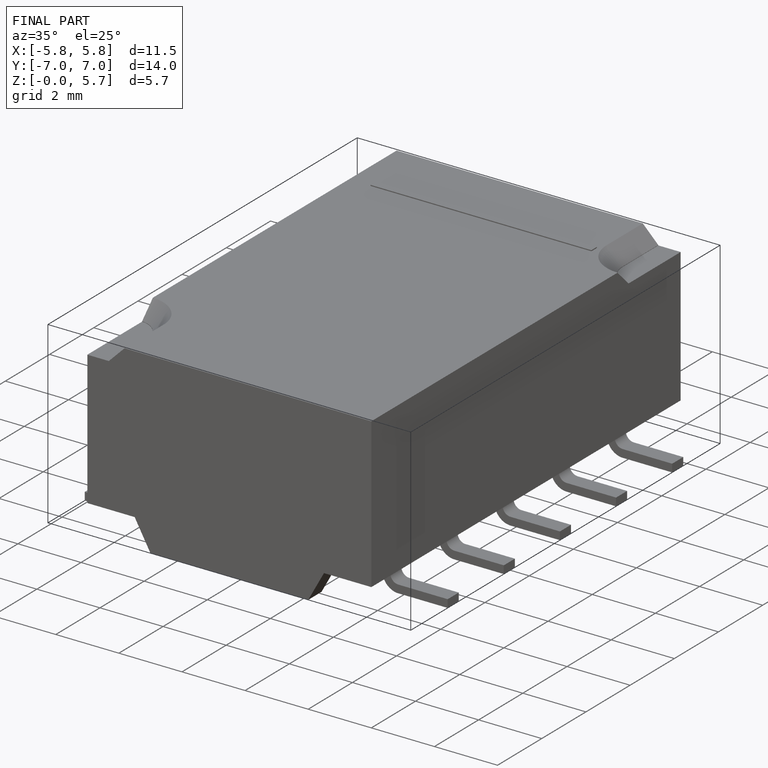
[diagram: finished part — iso view with bounding-box wireframe]
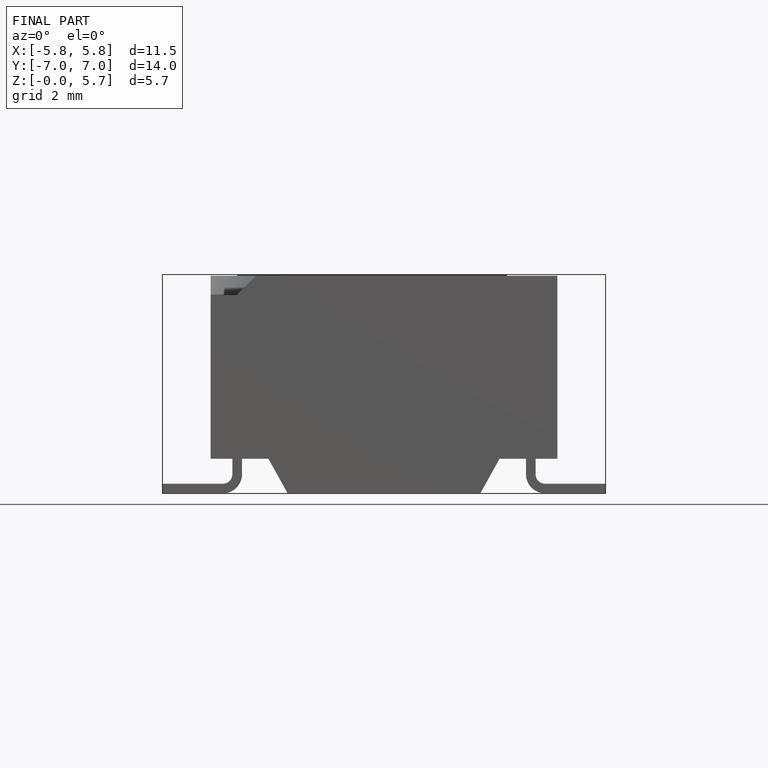
[diagram: finished part — front view with bounding-box wireframe]
